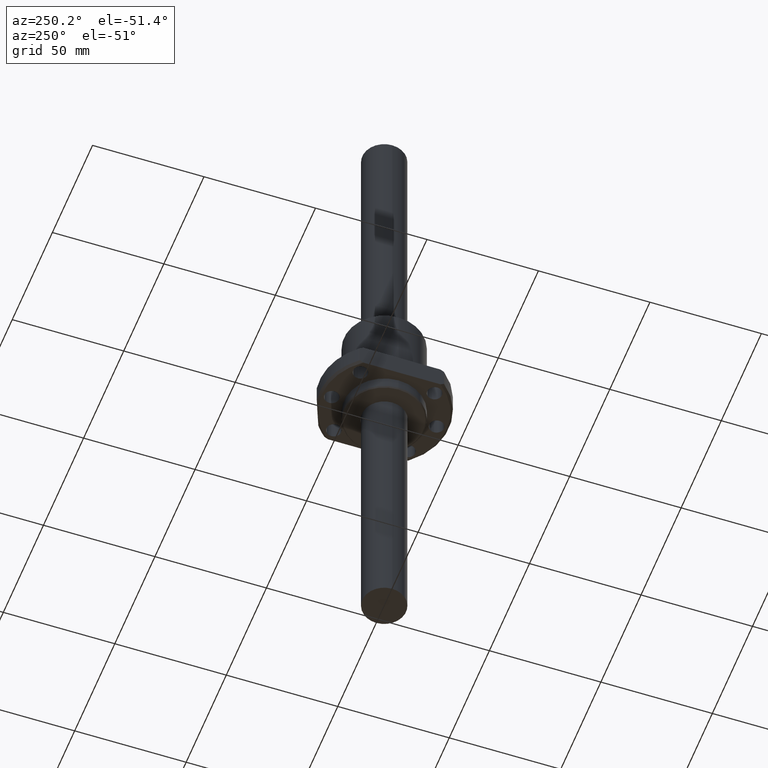
[diagram: clean part render]
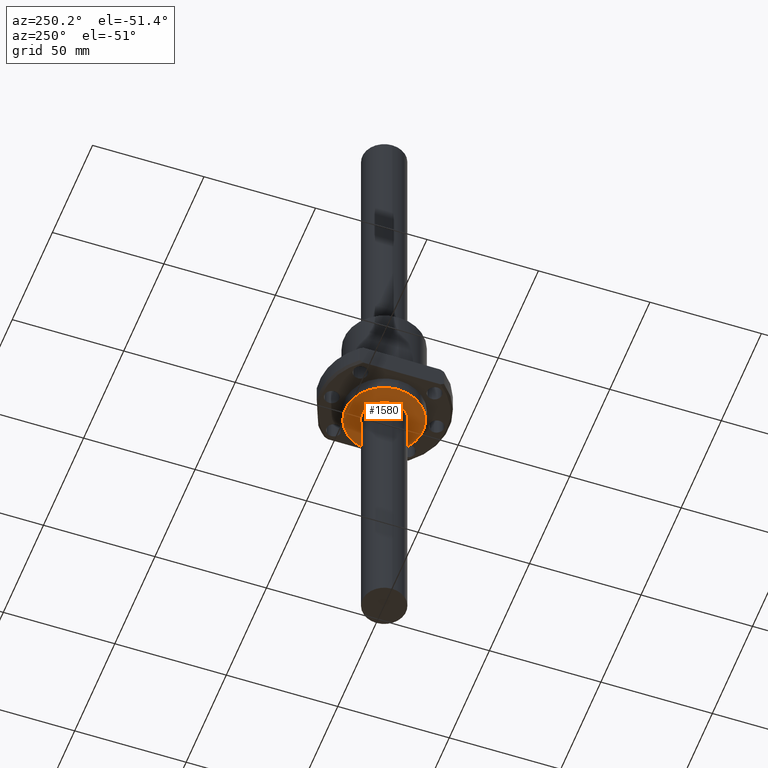
[diagram: same view with one face highlighted and labeled with its STEP entity id]
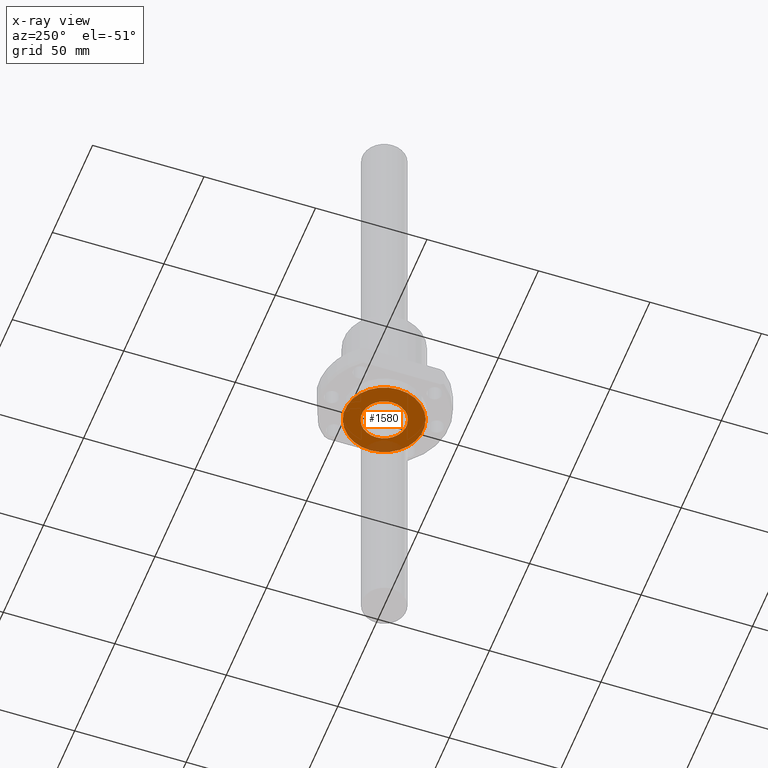
[diagram: x-ray of the same camera — body ghosted, the highlighted face saturated]
A machine part, auxiliary view. The second image highlights one B-rep face of the part: STEP entity #1580.
The next image is the same camera in x-ray: the body ghosted, the highlighted face saturated — about 11% of this face is hidden behind the body in this view.
In plain terms, the highlighted planar face has unit normal (0, 0, 1).
Its self-contained STEP definition (entity closure, byte-faithful):
#39 = VERTEX_POINT ( 'NONE', #1117 ) ;
#182 = AXIS2_PLACEMENT_3D ( 'NONE', #1271, #1716, #1693 ) ;
#205 = AXIS2_PLACEMENT_3D ( 'NONE', #725, #694, #653 ) ;
#229 = EDGE_LOOP ( 'NONE', ( #485, #1104 ) ) ;
#248 = EDGE_LOOP ( 'NONE', ( #945, #1026 ) ) ;
#277 = VERTEX_POINT ( 'NONE', #702 ) ;
#319 = EDGE_CURVE ( 'NONE', #1694, #1536, #495, .T. ) ;
#362 = CIRCLE ( 'NONE', #1606, 17.50000000000000000 ) ;
#437 = EDGE_CURVE ( 'NONE', #39, #277, #1477, .T. ) ;
#485 = ORIENTED_EDGE ( 'NONE', *, *, #319, .F. ) ;
#495 = CIRCLE ( 'NONE', #182, 10.00000000000000000 ) ;
#559 = CARTESIAN_POINT ( 'NONE',  ( 10.00000000000000000, 0.0000000000000000000, 0.0000000000000000000 ) ) ;
#587 = EDGE_CURVE ( 'NONE', #277, #39, #362, .T. ) ;
#653 = DIRECTION ( 'NONE',  ( -1.000000000000000000, 0.0000000000000000000, 0.0000000000000000000 ) ) ;
#661 = DIRECTION ( 'NONE',  ( -1.000000000000000000, 0.0000000000000000000, 0.0000000000000000000 ) ) ;
#663 = DIRECTION ( 'NONE',  ( 0.0000000000000000000, 0.0000000000000000000, -1.000000000000000000 ) ) ;
#670 = CARTESIAN_POINT ( 'NONE',  ( 17.71000000000000100, -17.71000000000000100, 0.0000000000000000000 ) ) ;
#671 = PLANE ( 'NONE',  #1526 ) ;
#692 = CARTESIAN_POINT ( 'NONE',  ( -10.00000000000000000, 1.224646799147353300E-015, 0.0000000000000000000 ) ) ;
#694 = DIRECTION ( 'NONE',  ( 0.0000000000000000000, 0.0000000000000000000, -1.000000000000000000 ) ) ;
#702 = CARTESIAN_POINT ( 'NONE',  ( 17.50000000000000000, 2.173748068486552000E-015, 0.0000000000000000000 ) ) ;
#725 = CARTESIAN_POINT ( 'NONE',  ( 0.0000000000000000000, 0.0000000000000000000, 0.0000000000000000000 ) ) ;
#779 = AXIS2_PLACEMENT_3D ( 'NONE', #812, #811, #810 ) ;
#810 = DIRECTION ( 'NONE',  ( 1.000000000000000000, 0.0000000000000000000, 0.0000000000000000000 ) ) ;
#811 = DIRECTION ( 'NONE',  ( 0.0000000000000000000, 0.0000000000000000000, 1.000000000000000000 ) ) ;
#812 = CARTESIAN_POINT ( 'NONE',  ( 0.0000000000000000000, 0.0000000000000000000, 0.0000000000000000000 ) ) ;
#945 = ORIENTED_EDGE ( 'NONE', *, *, #437, .F. ) ;
#1026 = ORIENTED_EDGE ( 'NONE', *, *, #587, .F. ) ;
#1104 = ORIENTED_EDGE ( 'NONE', *, *, #1419, .F. ) ;
#1117 = CARTESIAN_POINT ( 'NONE',  ( -17.50000000000000000, 0.0000000000000000000, 0.0000000000000000000 ) ) ;
#1271 = CARTESIAN_POINT ( 'NONE',  ( 0.0000000000000000000, 0.0000000000000000000, 0.0000000000000000000 ) ) ;
#1419 = EDGE_CURVE ( 'NONE', #1536, #1694, #1711, .T. ) ;
#1431 = FACE_OUTER_BOUND ( 'NONE', #248, .T. ) ;
#1477 = CIRCLE ( 'NONE', #205, 17.50000000000000000 ) ;
#1526 = AXIS2_PLACEMENT_3D ( 'NONE', #670, #663, #661 ) ;
#1536 = VERTEX_POINT ( 'NONE', #692 ) ;
#1580 = ADVANCED_FACE ( 'NONE', ( #1720, #1431 ), #671, .F. ) ;
#1606 = AXIS2_PLACEMENT_3D ( 'NONE', #1702, #1701, #1700 ) ;
#1693 = DIRECTION ( 'NONE',  ( 1.000000000000000000, 0.0000000000000000000, 0.0000000000000000000 ) ) ;
#1694 = VERTEX_POINT ( 'NONE', #559 ) ;
#1700 = DIRECTION ( 'NONE',  ( -1.000000000000000000, 0.0000000000000000000, 0.0000000000000000000 ) ) ;
#1701 = DIRECTION ( 'NONE',  ( 0.0000000000000000000, 0.0000000000000000000, -1.000000000000000000 ) ) ;
#1702 = CARTESIAN_POINT ( 'NONE',  ( 0.0000000000000000000, 0.0000000000000000000, 0.0000000000000000000 ) ) ;
#1711 = CIRCLE ( 'NONE', #779, 10.00000000000000000 ) ;
#1716 = DIRECTION ( 'NONE',  ( 0.0000000000000000000, 0.0000000000000000000, 1.000000000000000000 ) ) ;
#1720 = FACE_BOUND ( 'NONE', #229, .T. ) ;